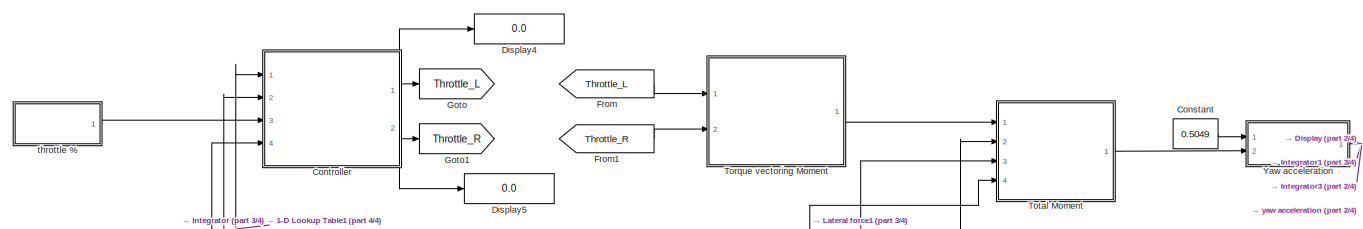
[diagram: root canvas - part 1/4, top center region]
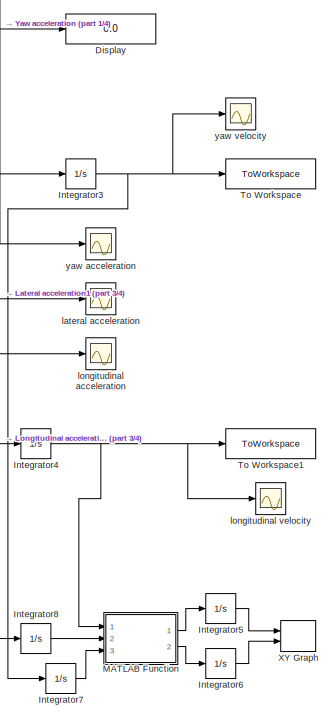
[diagram: root canvas - part 2/4, middle right region]
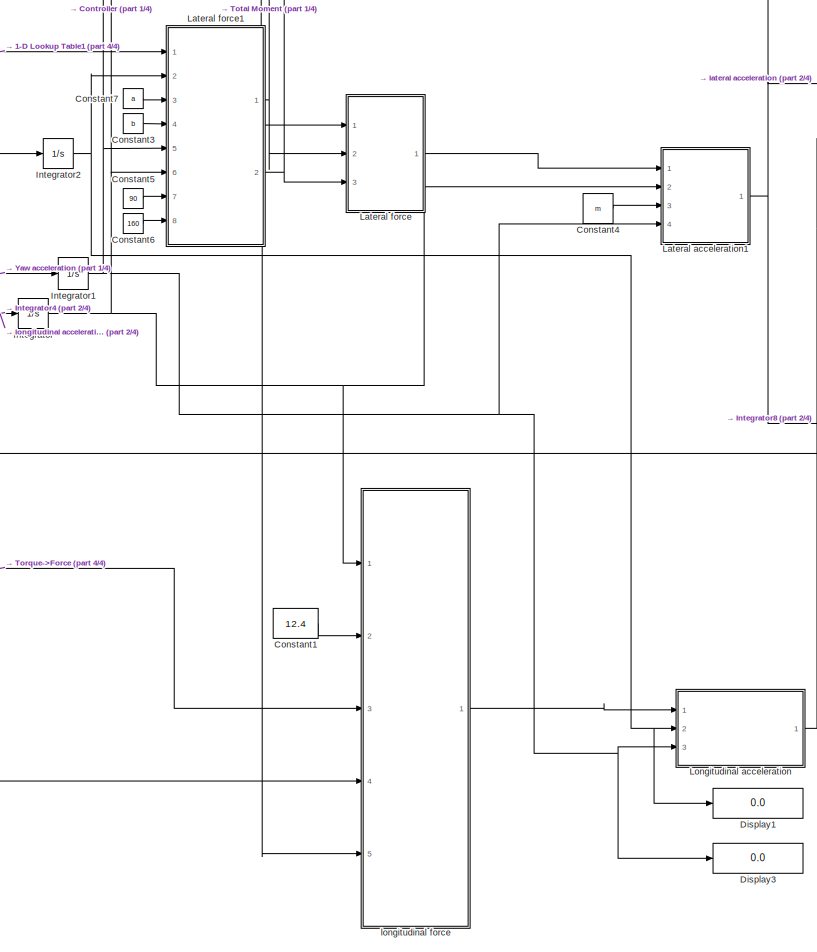
[diagram: root canvas - part 3/4, central region]
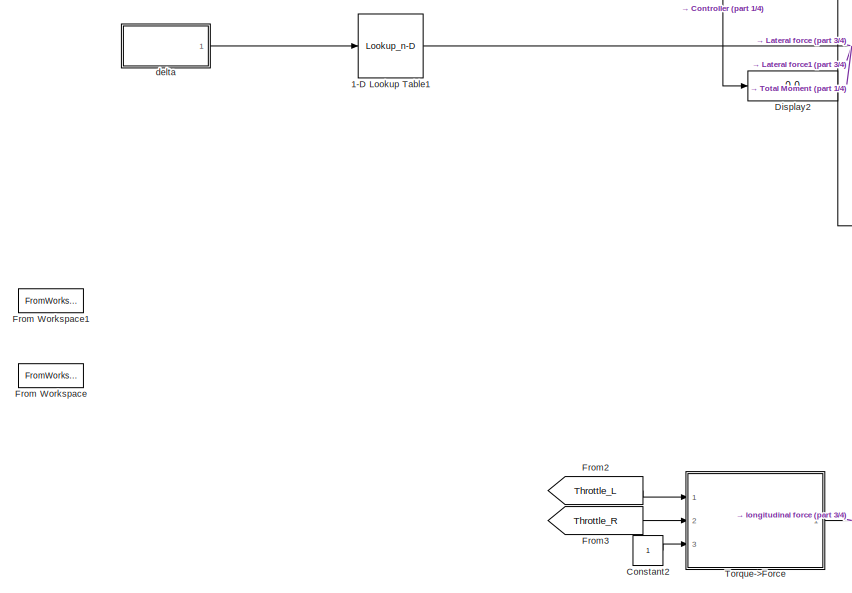
[diagram: root canvas - part 4/4, middle left region]
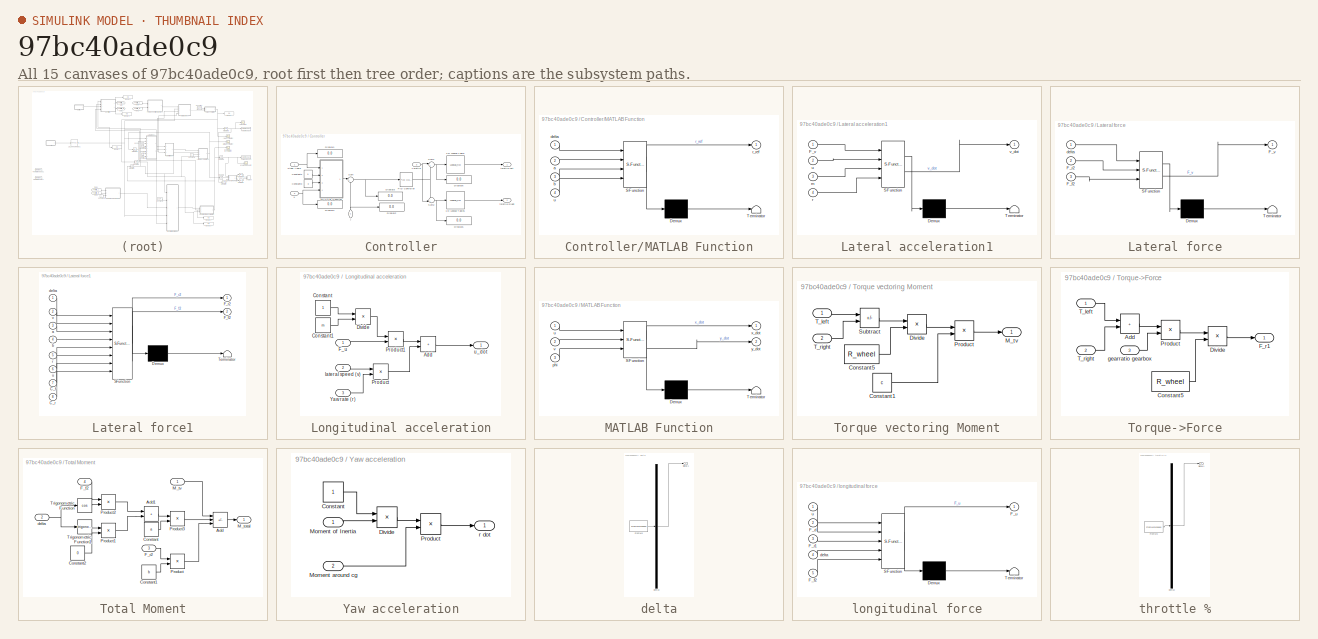
[diagram: thumbnail index - all 15 canvases of the model, root first then tree order]
MODEL slx_97bc40ade0c9
KIND model
CONFIG AbsTol = auto
CONFIG EnableMultiTasking = off
CONFIG FixedStep = 0.05
CONFIG MaxStep = auto
CONFIG MinStep = auto
CONFIG RelTol = 1e-3
CONFIG SampleTimeConstraint = Unconstrained
CONFIG SolverName = FixedStepAuto
CONFIG StartTime = 0.0
CONFIG StopTime = 50
WORKSPACE source: mxarray member
WORKSPACE R_wheel = 0.0565
WORKSPACE W = 0.055
WORKSPACE WD = 0.573125555665
WORKSPACE a = 0.306622172281
WORKSPACE b = 0.228377827719
WORKSPACE c = 0.38
WORKSPACE l = 0.535
WORKSPACE m = 13.4973333333
WORKSPACE m_LF = 2867.66666667
WORKSPACE m_LR = 3883.33333333
WORKSPACE m_RF = 2894
WORKSPACE m_RR = 3852.33333333
WORKSPACE m_f = 5761.66666667
WORKSPACE m_r = 7735.66666667
BLOCK [Lookup_n-D] 1-D Lookup Table1
  BreakpointsForDimension1 = [-50:50]
  InputPortMap = u0
  InternalRulePriority = Speed
  NumberOfTableDimensions = 1
  Ports = [1, 1]
  RndMeth = Simplest
  Table = -(([-50:50])/100)*0.4363*2
BLOCK [Constant] Constant
  Value = 0.5049
BLOCK [Constant] Constant1
  Value = 12.4
BLOCK [Constant] Constant2
BLOCK [Constant] Constant3
  Value = b
BLOCK [Constant] Constant4
  Value = m
BLOCK [Constant] Constant5
  Value = 90
BLOCK [Constant] Constant6
  Value = 160
BLOCK [Constant] Constant7
  Value = a
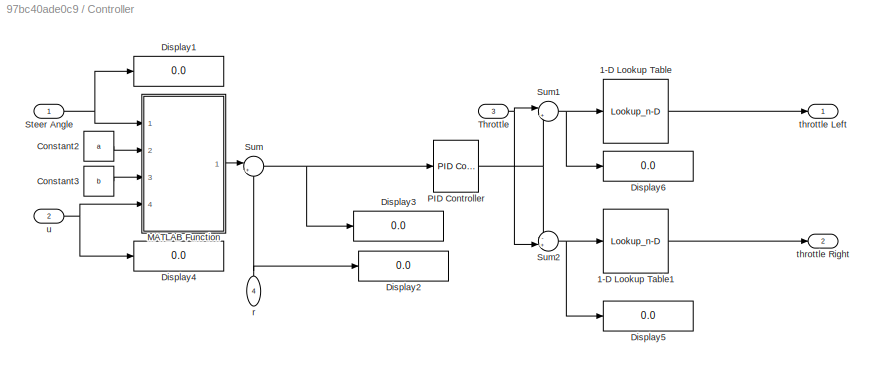
BLOCK [SubSystem] Controller
  Ports = [4, 2]
  RequestExecContextInheritance = off
BLOCK [Lookup_n-D] Controller/1-D Lookup Table
  BreakpointsForDimension1 = [0:100]
  InputPortMap = u0
  InternalRulePriority = Speed
  NumberOfTableDimensions = 1
  Ports = [1, 1]
  RndMeth = Simplest
  Table = (([0:100]-50)/100)*5.28*2
BLOCK [Lookup_n-D] Controller/1-D Lookup Table1
  BreakpointsForDimension1 = [0:100]
  InputPortMap = u0
  InternalRulePriority = Speed
  NumberOfTableDimensions = 1
  Ports = [1, 1]
  RndMeth = Simplest
  Table = (([0:100]-50)/100)*5.28*2
BLOCK [Constant] Controller/Constant2
  Value = a
BLOCK [Constant] Controller/Constant3
  Value = b
BLOCK [Display] Controller/Display1
  Decimation = 1
  Ports = [1]
BLOCK [Display] Controller/Display2
  Decimation = 1
  Ports = [1]
BLOCK [Display] Controller/Display3
  Decimation = 1
  Ports = [1]
BLOCK [Display] Controller/Display4
  Decimation = 1
  Ports = [1]
BLOCK [Display] Controller/Display5
  Decimation = 1
  Ports = [1]
BLOCK [Display] Controller/Display6
  Decimation = 1
  Ports = [1]
BLOCK [SubSystem] Controller/MATLAB Function
  ErrorFcn = Stateflow.Translate.translate
  PermitHierarchicalResolution = ExplicitOnly
  Ports = [4, 1]
  RequestExecContextInheritance = off
  SFBlockType = MATLAB Function
  TreatAsAtomicUnit = on
BLOCK [Demux] Controller/MATLAB Function/ Demux 
  Outputs = 1
  Ports = [1, 1]
BLOCK [S-Function] Controller/MATLAB Function/ SFunction 
  EnableBusSupport = on
  FunctionName = sf_sfun
  PortCounts = [4 2]
  Ports = [4, 2]
  SFcnIsStateOwnerBlock = off
  SFunctionDeploymentMode = off
  Tag = Stateflow S-Function 4
BLOCK [Terminator] Controller/MATLAB Function/ Terminator 
BLOCK [Inport] Controller/MATLAB Function/a
  Port = 2
BLOCK [Inport] Controller/MATLAB Function/b
  Port = 3
BLOCK [Inport] Controller/MATLAB Function/delta
BLOCK [Outport] Controller/MATLAB Function/r_ref
BLOCK [Inport] Controller/MATLAB Function/u
  Port = 4
BLOCK [Reference] Controller/PID Controller  REF=slpidlib/PID Controller
  Ports = [1, 1]
  SourceBlock = slpidlib/PID Controller
  SourceProductBaseCode = SL
  SourceType = PID 1dof
BLOCK [Inport] Controller/Steer Angle
BLOCK [Sum] Controller/Sum
  Inputs = |+-
  Ports = [2, 1]
BLOCK [Sum] Controller/Sum1
  Inputs = |++
  Ports = [2, 1]
BLOCK [Sum] Controller/Sum2
  Inputs = -+|
  Ports = [2, 1]
BLOCK [Inport] Controller/Throttle
  Port = 3
BLOCK [Inport] Controller/r
  NameLocation = right
  Port = 4
BLOCK [Outport] Controller/throttle Left
  NameLocation = right
BLOCK [Outport] Controller/throttle Right
  Port = 2
BLOCK [Inport] Controller/u
  Port = 2
BLOCK [Display] Display
  Decimation = 1
  Ports = [1]
BLOCK [Display] Display1
  Decimation = 1
  Ports = [1]
BLOCK [Display] Display2
  Decimation = 1
  Ports = [1]
BLOCK [Display] Display3
  Decimation = 1
  Ports = [1]
BLOCK [Display] Display4
  Decimation = 1
  Ports = [1]
BLOCK [Display] Display5
  Decimation = 1
  Ports = [1]
BLOCK [From] From
  GotoTag = Throttle_L
BLOCK [FromWorkspace] From Workspace
  Commented = on
  OutDataTypeStr = double
  VariableName = Steer_percent
BLOCK [FromWorkspace] From Workspace1
  Commented = on
  OutDataTypeStr = double
  VariableName = Throttle_percent
BLOCK [From] From1
  GotoTag = Throttle_R
BLOCK [From] From2
  GotoTag = Throttle_L
BLOCK [From] From3
  GotoTag = Throttle_R
BLOCK [Goto] Goto
  GotoTag = Throttle_L
BLOCK [Goto] Goto1
  GotoTag = Throttle_R
BLOCK [Integrator] Integrator
  Ports = [1, 1]
BLOCK [Integrator] Integrator1
  Ports = [1, 1]
BLOCK [Integrator] Integrator2
  Ports = [1, 1]
BLOCK [Integrator] Integrator3
  Ports = [1, 1]
  UpperSaturationLimit = 90000
BLOCK [Integrator] Integrator4
  Ports = [1, 1]
BLOCK [Integrator] Integrator5
  Ports = [1, 1]
BLOCK [Integrator] Integrator6
  Ports = [1, 1]
BLOCK [Integrator] Integrator7
  Ports = [1, 1]
BLOCK [Integrator] Integrator8
  Ports = [1, 1]
BLOCK [SubSystem] Lateral acceleration1
  ErrorFcn = Stateflow.Translate.translate
  PermitHierarchicalResolution = ExplicitOnly
  Ports = [4, 1]
  RequestExecContextInheritance = off
  SFBlockType = MATLAB Function
  TreatAsAtomicUnit = on
BLOCK [Demux] Lateral acceleration1/ Demux 
  Outputs = 1
  Ports = [1, 1]
BLOCK [S-Function] Lateral acceleration1/ SFunction 
  EnableBusSupport = on
  FunctionName = sf_sfun
  PortCounts = [4 2]
  Ports = [4, 2]
  SFcnIsStateOwnerBlock = off
  SFunctionDeploymentMode = off
  Tag = Stateflow S-Function 1
BLOCK [Terminator] Lateral acceleration1/ Terminator 
BLOCK [Inport] Lateral acceleration1/F_v
BLOCK [Inport] Lateral acceleration1/m
  Port = 3
BLOCK [Inport] Lateral acceleration1/r
  Port = 4
BLOCK [Inport] Lateral acceleration1/u
  Port = 2
BLOCK [Outport] Lateral acceleration1/v_dot
BLOCK [SubSystem] Lateral force
  ErrorFcn = Stateflow.Translate.translate
  PermitHierarchicalResolution = ExplicitOnly
  Ports = [3, 1]
  RequestExecContextInheritance = off
  SFBlockType = MATLAB Function
  TreatAsAtomicUnit = on
BLOCK [Demux] Lateral force/ Demux 
  Outputs = 1
  Ports = [1, 1]
BLOCK [S-Function] Lateral force/ SFunction 
  EnableBusSupport = on
  FunctionName = sf_sfun
  PortCounts = [3 2]
  Ports = [3, 2]
  SFcnIsStateOwnerBlock = off
  SFunctionDeploymentMode = off
  Tag = Stateflow S-Function 2
BLOCK [Terminator] Lateral force/ Terminator 
BLOCK [Inport] Lateral force/F_f2
  Port = 3
BLOCK [Inport] Lateral force/F_r2
  Port = 2
BLOCK [Outport] Lateral force/F_v
BLOCK [Inport] Lateral force/delta
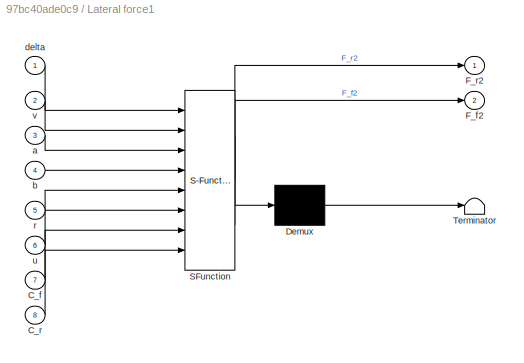
BLOCK [SubSystem] Lateral force1
  ErrorFcn = Stateflow.Translate.translate
  PermitHierarchicalResolution = ExplicitOnly
  Ports = [8, 2]
  RequestExecContextInheritance = off
  SFBlockType = MATLAB Function
  TreatAsAtomicUnit = on
BLOCK [Demux] Lateral force1/ Demux 
  Outputs = 1
  Ports = [1, 1]
BLOCK [S-Function] Lateral force1/ SFunction 
  EnableBusSupport = on
  FunctionName = sf_sfun
  PortCounts = [8 3]
  Ports = [8, 3]
  SFcnIsStateOwnerBlock = off
  SFunctionDeploymentMode = off
  Tag = Stateflow S-Function 5
BLOCK [Terminator] Lateral force1/ Terminator 
BLOCK [Inport] Lateral force1/C_f
  Port = 7
BLOCK [Inport] Lateral force1/C_r
  Port = 8
BLOCK [Outport] Lateral force1/F_f2
  Port = 2
BLOCK [Outport] Lateral force1/F_r2
BLOCK [Inport] Lateral force1/a
  Port = 3
BLOCK [Inport] Lateral force1/b
  Port = 4
BLOCK [Inport] Lateral force1/delta
BLOCK [Inport] Lateral force1/r
  Port = 5
BLOCK [Inport] Lateral force1/u
  Port = 6
BLOCK [Inport] Lateral force1/v
  Port = 2
BLOCK [SubSystem] Longitudinal acceleration
  Ports = [3, 1]
  RequestExecContextInheritance = off
BLOCK [Sum] Longitudinal acceleration/Add
  IconShape = rectangular
  Ports = [2, 1]
BLOCK [Constant] Longitudinal acceleration/Constant
BLOCK [Constant] Longitudinal acceleration/Constant1
  Value = m
BLOCK [Product] Longitudinal acceleration/Divide
  Inputs = */
  Ports = [2, 1]
BLOCK [Inport] Longitudinal acceleration/F_u
BLOCK [Product] Longitudinal acceleration/Product
  Ports = [2, 1]
BLOCK [Product] Longitudinal acceleration/Product1
  Ports = [2, 1]
BLOCK [Inport] Longitudinal acceleration/Yaw rate (r)
  Port = 3
BLOCK [Inport] Longitudinal acceleration/lateral speed (v)
  Port = 2
BLOCK [Outport] Longitudinal acceleration/u_dot
BLOCK [SubSystem] MATLAB Function
  ErrorFcn = Stateflow.Translate.translate
  PermitHierarchicalResolution = ExplicitOnly
  Ports = [3, 2]
  RequestExecContextInheritance = off
  SFBlockType = MATLAB Function
  TreatAsAtomicUnit = on
BLOCK [Demux] MATLAB Function/ Demux 
  Outputs = 1
  Ports = [1, 1]
BLOCK [S-Function] MATLAB Function/ SFunction 
  EnableBusSupport = on
  FunctionName = sf_sfun
  PortCounts = [3 3]
  Ports = [3, 3]
  SFcnIsStateOwnerBlock = off
  SFunctionDeploymentMode = off
  Tag = Stateflow S-Function 6
BLOCK [Terminator] MATLAB Function/ Terminator 
BLOCK [Inport] MATLAB Function/phi
  Port = 3
BLOCK [Inport] MATLAB Function/u
BLOCK [Inport] MATLAB Function/v
  Port = 2
BLOCK [Outport] MATLAB Function/x_dot
BLOCK [Outport] MATLAB Function/y_dot
  Port = 2
BLOCK [ToWorkspace] To Workspace
  FixptAsFi = on
  MaxDataPoints = inf
  Ports = [1]
  SampleTime = -1
  SaveFormat = Timeseries
  VariableName = yaw_velocity
BLOCK [ToWorkspace] To Workspace1
  FixptAsFi = on
  MaxDataPoints = inf
  Ports = [1]
  SampleTime = -1
  SaveFormat = Timeseries
  VariableName = longitudinal_velocity
BLOCK [SubSystem] Torque vectoring Moment
  Ports = [2, 1]
  RequestExecContextInheritance = off
BLOCK [Constant] Torque vectoring Moment/Constant1
  Value = c
BLOCK [Constant] Torque vectoring Moment/Constant5
  Value = R_wheel
BLOCK [Product] Torque vectoring Moment/Divide
  Inputs = */
  Ports = [2, 1]
BLOCK [Outport] Torque vectoring Moment/M_tv
BLOCK [Product] Torque vectoring Moment/Product
  Ports = [2, 1]
BLOCK [Sum] Torque vectoring Moment/Subtract
  IconShape = rectangular
  Inputs = +-
  Ports = [2, 1]
BLOCK [Inport] Torque vectoring Moment/T_left
BLOCK [Inport] Torque vectoring Moment/T_right
  Port = 2
BLOCK [SubSystem] Torque->Force
  Ports = [3, 1]
  RequestExecContextInheritance = off
BLOCK [Sum] Torque->Force/Add
  IconShape = rectangular
  Ports = [2, 1]
BLOCK [Constant] Torque->Force/Constant5
  Value = R_wheel
BLOCK [Product] Torque->Force/Divide
  Inputs = */
  Ports = [2, 1]
BLOCK [Outport] Torque->Force/F_r1
BLOCK [Product] Torque->Force/Product
  Ports = [2, 1]
BLOCK [Inport] Torque->Force/T_left
BLOCK [Inport] Torque->Force/T_right
  Port = 2
BLOCK [Inport] Torque->Force/gearratio gearbox
  Port = 3
BLOCK [SubSystem] Total Moment
  Ports = [4, 1]
  RequestExecContextInheritance = off
BLOCK [Sum] Total Moment/Add
  IconShape = rectangular
  Inputs = ++-
  Ports = [3, 1]
BLOCK [Sum] Total Moment/Add1
  IconShape = rectangular
  Ports = [2, 1]
BLOCK [Constant] Total Moment/Constant
  Value = a
BLOCK [Constant] Total Moment/Constant1
  Value = b
BLOCK [Constant] Total Moment/Constant2
  Value = 0
BLOCK [Inport] Total Moment/F_f2
  Port = 4
BLOCK [Inport] Total Moment/F_r2
  Port = 3
BLOCK [Outport] Total Moment/M_total
BLOCK [Inport] Total Moment/M_tv
BLOCK [Product] Total Moment/Product
  Ports = [2, 1]
BLOCK [Product] Total Moment/Product1
  Ports = [2, 1]
BLOCK [Product] Total Moment/Product2
  Ports = [2, 1]
BLOCK [Product] Total Moment/Product3
  Ports = [2, 1]
BLOCK [Trigonometry] Total Moment/Trigonometric Function
  Operator = cos
  Ports = [1, 1]
BLOCK [Trigonometry] Total Moment/Trigonometric Function1
  Ports = [1, 1]
BLOCK [Inport] Total Moment/delta
  Port = 2
BLOCK [Record] XY Graph
  CompatibilityTag = XY
  FileSettingsInternal = {"entries":[{"content":{"excelSettings":{"content":{},"type":"Streamout.ExcelSettings"}},"type":"Streamout.FileSettingStorage","uuid":"646fc22e-f072-489d-bdf6-575e97744bfb"}],"packageUris":["http://schema.mathworks.com/mf0/streamout_blocks/R2020a"],"version":"1.0"}
  Layout = [1 1]
  Ports = [2]
  SignalsInternal = {"entries":[{"content":{"signals":[{"content":{"blockPath":["simulinkModel/XY Graph"],"channel":[],"dimensions":[1],"domain":"simulinkModel/XY Graph","lineColor":"#a2142f","plots":[1],"port":1,"sid":[],"signalID":59,"signalName":"Integrator5"},"type":"RecordBlkView.Signal","uuid":"26f0f7e4-69c7-4c74-a1d3-606616469fde"},{"content":{"blockPath":["simulinkModel/XY Graph"],"channel":[],"dimensions":[1...<+383ch>
  VisualizationBindings = {"xyplotplugin":{"info":[{"series":[{"bindingParametersList":[{"parameter":"X-Axis","signalID":59,"signalName":"Integrator5"},{"parameter":"Y-Axis","signalID":62,"signalName":"Integrator6"}],"seriesID":24662}],"subplotID":1}]}}
BLOCK [SubSystem] Yaw acceleration
  Ports = [2, 1]
  RequestExecContextInheritance = off
BLOCK [Constant] Yaw acceleration/Constant
BLOCK [Product] Yaw acceleration/Divide
  Inputs = */
  Ports = [2, 1]
BLOCK [Inport] Yaw acceleration/Moment around cg
  Port = 2
BLOCK [Inport] Yaw acceleration/Moment of Inertia
BLOCK [Product] Yaw acceleration/Product
  Ports = [2, 1]
BLOCK [Outport] Yaw acceleration/r dot
BLOCK [SubSystem] delta
  ClipboardFcn = sigbuilder_block('clipboard');
  CloseFcn = sigbuilder_block('close');
  ContinueFcn = sigbuilder_block('continue');
  CopyFcn = sigbuilder_block('copy');
  DeleteFcn = sigbuilder_block('delete');
  LoadFcn = sigbuilder_block('load');
  MaskHideContents = on
  ModelCloseFcn = sigbuilder_block('modelClose');
  NameChangeFcn = sigbuilder_block('namechange');
  OpenFcn = sigbuilder_block('open',[511.2 133.2 550.8 400.2 ]);
  PauseFcn = sigbuilder_block('pause');
  Ports = [0, 1]
  PreSaveFcn = sigbuilder_block('preSave');
  RequestExecContextInheritance = off
  StartFcn = sigbuilder_block('start');
  StopFcn = sigbuilder_block('stop');
  Tag = STV Subsys
BLOCK [Demux] delta/Demux
  DisplayOption = none
  Outputs = 1
  Ports = [1, 1]
  Tag = STV Demux
BLOCK [FromWorkspace] delta/FromWs
  Tag = STV FromWs
  VariableName = tuvar
BLOCK [Outport] delta/Signal 1
  Tag = STV Outport
BLOCK [Scope] lateral acceleration
  Floating = off
  NumInputPorts = 1
  Ports = [1]
  ScopeSpecificationString = Simulink.scopes.TimeScopeBlockCfg('CurrentConfiguration', extmgr.ConfigurationSet(extmgr.Configuration('Core','General UI',true),extmgr.Configuration('Core','Source UI',true),extmgr.Configuration('Sources','WiredSimulink',true,'DataLoggingVariableName','ScopeData1'),extmgr.Configuration('Visuals','Time Domain',true),extmgr.Configuration('Tools','Plot Navigation',true),extmgr.Configuration('Tools',...<+40ch>
BLOCK [Scope] longitudinal acceleration
  Floating = off
  NumInputPorts = 1
  Ports = [1]
  ScopeSpecificationString = Simulink.scopes.TimeScopeBlockCfg('CurrentConfiguration', extmgr.ConfigurationSet(extmgr.Configuration('Core','General UI',true),extmgr.Configuration('Core','Source UI',true),extmgr.Configuration('Sources','WiredSimulink',true,'DataLoggingVariableName','ScopeData2'),extmgr.Configuration('Visuals','Time Domain',true,'SerializedDisplays',{struct('MinYLimReal','-1.64562','MaxYLimReal','2.23021','YLab...<+1415ch>
BLOCK [SubSystem] longitudinal force
  ErrorFcn = Stateflow.Translate.translate
  PermitHierarchicalResolution = ExplicitOnly
  Ports = [5, 1]
  RequestExecContextInheritance = off
  SFBlockType = MATLAB Function
  TreatAsAtomicUnit = on
BLOCK [Demux] longitudinal force/ Demux 
  Outputs = 1
  Ports = [1, 1]
BLOCK [S-Function] longitudinal force/ SFunction 
  EnableBusSupport = on
  FunctionName = sf_sfun
  PortCounts = [5 2]
  Ports = [5, 2]
  SFcnIsStateOwnerBlock = off
  SFunctionDeploymentMode = off
  Tag = Stateflow S-Function 3
BLOCK [Terminator] longitudinal force/ Terminator 
BLOCK [Inport] longitudinal force/F_d
  Port = 2
BLOCK [Inport] longitudinal force/F_f2
  Port = 5
BLOCK [Inport] longitudinal force/F_r1
  Port = 3
BLOCK [Outport] longitudinal force/F_u
BLOCK [Inport] longitudinal force/delta
  Port = 4
BLOCK [Inport] longitudinal force/u
BLOCK [Scope] longitudinal velocity
  Floating = off
  NumInputPorts = 1
  Ports = [1]
  ScopeSpecificationString = Simulink.scopes.TimeScopeBlockCfg('CurrentConfiguration', extmgr.ConfigurationSet(extmgr.Configuration('Core','General UI',true),extmgr.Configuration('Core','Source UI',true),extmgr.Configuration('Sources','WiredSimulink',true,'DataLoggingVariableName','ScopeData2'),extmgr.Configuration('Visuals','Time Domain',true,'SerializedDisplays',{struct('MinYLimReal','-0.69996','MaxYLimReal','6.29964','YLab...<+1403ch>
BLOCK [SubSystem] throttle %
  ClipboardFcn = sigbuilder_block('clipboard');
  CloseFcn = sigbuilder_block('close');
  ContinueFcn = sigbuilder_block('continue');
  CopyFcn = sigbuilder_block('copy');
  DeleteFcn = sigbuilder_block('delete');
  LoadFcn = sigbuilder_block('load');
  MaskHideContents = on
  ModelCloseFcn = sigbuilder_block('modelClose');
  NameChangeFcn = sigbuilder_block('namechange');
  OpenFcn = sigbuilder_block('open',[180 96 550.8 400.2 ]);
  PauseFcn = sigbuilder_block('pause');
  Ports = [0, 1]
  PreSaveFcn = sigbuilder_block('preSave');
  RequestExecContextInheritance = off
  StartFcn = sigbuilder_block('start');
  StopFcn = sigbuilder_block('stop');
  Tag = STV Subsys
BLOCK [Demux] throttle %/Demux
  DisplayOption = none
  Outputs = 1
  Ports = [1, 1]
  Tag = STV Demux
BLOCK [FromWorkspace] throttle %/FromWs
  Tag = STV FromWs
  VariableName = tuvar
BLOCK [Outport] throttle %/Signal 1
  Tag = STV Outport
BLOCK [Scope] yaw acceleration
  Floating = off
  NumInputPorts = 1
  Ports = [1]
  ScopeSpecificationString = Simulink.scopes.TimeScopeBlockCfg('CurrentConfiguration', extmgr.ConfigurationSet(extmgr.Configuration('Core','General UI',true),extmgr.Configuration('Core','Source UI',true),extmgr.Configuration('Sources','WiredSimulink',true),extmgr.Configuration('Visuals','Time Domain',true,'SerializedDisplays',{struct('MinYLimReal','-1.00000','MaxYLimReal','1.00000','YLabelReal','','MinYLimMag','0.00000','MaxY...<+1368ch>
BLOCK [Scope] yaw velocity
  Floating = off
  NumInputPorts = 1
  Ports = [1]
  ScopeSpecificationString = Simulink.scopes.TimeScopeBlockCfg('CurrentConfiguration', extmgr.ConfigurationSet(extmgr.Configuration('Core','General UI',true),extmgr.Configuration('Core','Source UI',true),extmgr.Configuration('Sources','WiredSimulink',true,'DataLoggingVariableName','ScopeData1'),extmgr.Configuration('Visuals','Time Domain',true,'SerializedDisplays',{struct('MinYLimReal','-7.5835','MaxYLimReal','33.22187','YLab...<+1450ch>
NET 1-D Lookup Table1:1 -> Controller:1, Display2:1, Lateral force1:1, Lateral force:1, Total Moment:2, longitudinal force:4
LINE Constant1:1 -> longitudinal force:2
LINE Constant2:1 -> Torque->Force:3
LINE Constant3:1 -> Lateral force1:4
LINE Constant4:1 -> Lateral acceleration1:3
LINE Constant5:1 -> Lateral force1:7
LINE Constant6:1 -> Lateral force1:8
LINE Constant7:1 -> Lateral force1:3
LINE Constant:1 -> Yaw acceleration:1
LINE Controller/1-D Lookup Table1:1 -> Controller/throttle Right:1
LINE Controller/1-D Lookup Table:1 -> Controller/throttle Left:1
LINE Controller/Constant2:1 -> Controller/MATLAB Function:2
LINE Controller/Constant3:1 -> Controller/MATLAB Function:3
LINE Controller/MATLAB Function:1 -> Controller/Sum:1
NET Controller/PID Controller:1 -> Controller/Sum1:2, Controller/Sum2:1
NET Controller/Steer Angle:1 -> Controller/Display1:1, Controller/MATLAB Function:1
NET Controller/Sum1:1 -> Controller/1-D Lookup Table:1, Controller/Display6:1
NET Controller/Sum2:1 -> Controller/1-D Lookup Table1:1, Controller/Display5:1
NET Controller/Sum:1 -> Controller/Display3:1, Controller/PID Controller:1
NET Controller/Throttle:1 -> Controller/Sum1:1, Controller/Sum2:2
NET Controller/r:1 -> Controller/Display2:1, Controller/Sum:2
NET Controller/u:1 -> Controller/Display4:1, Controller/MATLAB Function:4
NET Controller:1 -> Display4:1, Goto:1
NET Controller:2 -> Display5:1, Goto1:1
LINE From1:1 -> Torque vectoring Moment:2
LINE From2:1 -> Torque->Force:1
LINE From3:1 -> Torque->Force:2
LINE From:1 -> Torque vectoring Moment:1
NET Integrator1:1 -> Controller:4, Display3:1, Lateral acceleration1:4, Lateral force1:5, Longitudinal acceleration:3
NET Integrator2:1 -> Display1:1, Lateral force1:2, Longitudinal acceleration:2
NET Integrator3:1 -> Integrator7:1, To Workspace:1, yaw velocity:1
NET Integrator4:1 -> MATLAB Function:1, To Workspace1:1, longitudinal velocity:1
LINE Integrator5:1 -> XY Graph:1
LINE Integrator6:1 -> XY Graph:2
LINE Integrator7:1 -> MATLAB Function:3
LINE Integrator8:1 -> MATLAB Function:2
NET Integrator:1 -> Controller:2, Lateral acceleration1:2, Lateral force1:6, longitudinal force:1
NET Lateral acceleration1:1 -> Integrator2:1, Integrator8:1, lateral acceleration:1
NET Lateral force1:1 -> Lateral force:2, Total Moment:3
NET Lateral force1:2 -> Lateral force:3, Total Moment:4, longitudinal force:5
LINE Lateral force:1 -> Lateral acceleration1:1
LINE Longitudinal acceleration/Add:1 -> Longitudinal acceleration/u_dot:1
LINE Longitudinal acceleration/Constant1:1 -> Longitudinal acceleration/Divide:2
LINE Longitudinal acceleration/Constant:1 -> Longitudinal acceleration/Divide:1
LINE Longitudinal acceleration/Divide:1 -> Longitudinal acceleration/Product1:1
LINE Longitudinal acceleration/F_u:1 -> Longitudinal acceleration/Product1:2
LINE Longitudinal acceleration/Product1:1 -> Longitudinal acceleration/Add:1
LINE Longitudinal acceleration/Product:1 -> Longitudinal acceleration/Add:2
LINE Longitudinal acceleration/Yaw rate (r):1 -> Longitudinal acceleration/Product:2
LINE Longitudinal acceleration/lateral speed (v):1 -> Longitudinal acceleration/Product:1
NET Longitudinal acceleration:1 -> Integrator4:1, Integrator:1, longitudinal acceleration:1
LINE MATLAB Function:1 -> Integrator5:1
LINE MATLAB Function:2 -> Integrator6:1
LINE Torque vectoring Moment/Constant1:1 -> Torque vectoring Moment/Product:2
LINE Torque vectoring Moment/Constant5:1 -> Torque vectoring Moment/Divide:2
LINE Torque vectoring Moment/Divide:1 -> Torque vectoring Moment/Product:1
LINE Torque vectoring Moment/Product:1 -> Torque vectoring Moment/M_tv:1
LINE Torque vectoring Moment/Subtract:1 -> Torque vectoring Moment/Divide:1
LINE Torque vectoring Moment/T_left:1 -> Torque vectoring Moment/Subtract:1
LINE Torque vectoring Moment/T_right:1 -> Torque vectoring Moment/Subtract:2
LINE Torque vectoring Moment:1 -> Total Moment:1
LINE Torque->Force/Add:1 -> Torque->Force/Product:1
LINE Torque->Force/Constant5:1 -> Torque->Force/Divide:2
LINE Torque->Force/Divide:1 -> Torque->Force/F_r1:1
LINE Torque->Force/Product:1 -> Torque->Force/Divide:1
LINE Torque->Force/T_left:1 -> Torque->Force/Add:1
LINE Torque->Force/T_right:1 -> Torque->Force/Add:2
LINE Torque->Force/gearratio gearbox:1 -> Torque->Force/Product:2
LINE Torque->Force:1 -> longitudinal force:3
LINE Total Moment/Add1:1 -> Total Moment/Product3:1
LINE Total Moment/Add:1 -> Total Moment/M_total:1
LINE Total Moment/Constant1:1 -> Total Moment/Product:2
LINE Total Moment/Constant2:1 -> Total Moment/Product1:2
LINE Total Moment/Constant:1 -> Total Moment/Product3:2
LINE Total Moment/F_f2:1 -> Total Moment/Product2:1
LINE Total Moment/F_r2:1 -> Total Moment/Product:1
LINE Total Moment/M_tv:1 -> Total Moment/Add:1
LINE Total Moment/Product1:1 -> Total Moment/Add1:2
LINE Total Moment/Product2:1 -> Total Moment/Add1:1
LINE Total Moment/Product3:1 -> Total Moment/Add:2
LINE Total Moment/Product:1 -> Total Moment/Add:3
LINE Total Moment/Trigonometric Function1:1 -> Total Moment/Product1:1
LINE Total Moment/Trigonometric Function:1 -> Total Moment/Product2:2
NET Total Moment/delta:1 -> Total Moment/Trigonometric Function1:1, Total Moment/Trigonometric Function:1
LINE Total Moment:1 -> Yaw acceleration:2
LINE Yaw acceleration/Constant:1 -> Yaw acceleration/Divide:1
LINE Yaw acceleration/Divide:1 -> Yaw acceleration/Product:1
LINE Yaw acceleration/Moment around cg:1 -> Yaw acceleration/Product:2
LINE Yaw acceleration/Moment of Inertia:1 -> Yaw acceleration/Divide:2
LINE Yaw acceleration/Product:1 -> Yaw acceleration/r dot:1
NET Yaw acceleration:1 -> Display:1, Integrator1:1, Integrator3:1, yaw acceleration:1
LINE delta:1 -> 1-D Lookup Table1:1
LINE longitudinal force:1 -> Longitudinal acceleration:1
LINE throttle %:1 -> Controller:3
note: NET lines group one-source signal fan-out (src -> all destinations, sorted); 1:1 wires keep LINE
CHART Lateral acceleration1 states=1 transitions=1
  STATE_LABEL 'eML_blk_kernel()'
  STATE_LABEL 'SCRIPT:\nfunction v_dot = fcn(F_v, u, m, r)\nv_dot = double((1/m)*F_v - u *r);\n\n'
CHART Lateral force states=1 transitions=1
  STATE_LABEL 'eML_blk_kernel()'
  STATE_LABEL 'SCRIPT:\nfunction F_v = Lateral_Force(delta, F_r2, F_f2)\nF_v = F_r2 + cos(delta)*F_f2;\n\n'
CHART longitudinal force states=1 transitions=1
  STATE_LABEL 'eML_blk_kernel()'
  STATE_LABEL 'SCRIPT:\nfunction F_u = longitudinal_force(u,F_d,F_r1, delta, F_f2)\nif u>0\n    F_dreal = F_d;\nelseif u<0\n    F_dreal = -F_d;\nelse\n    F_dreal = 0;\nend\nF_u = F_r1 - sin(delta)*F_f2 - F_dreal;\n'
CHART Controller/MATLAB Function states=1 transitions=1
  STATE_LABEL 'eML_blk_kernel()'
  STATE_LABEL 'SCRIPT:\nfunction r_ref = r(delta,a,b,u)\nr_ref = ((tan(delta))/(a+b)) * u;\n'
CHART Lateral force1 states=1 transitions=1
  STATE_LABEL 'eML_blk_kernel()'
  STATE_LABEL 'SCRIPT:\nfunction [F_r2,F_f2] = Lateral_Force_Front(delta,v,a,b,r,u, C_f,C_r)\nif abs(u)>0\n    alpha_r = atan((-v+b*r)/u);\n    alpha_f = delta + atan((-v-a*r)/u);\nelse\n    alpha_r = 0;\n    alpha_f = 0;\nend\n\nF_f2 = C_f*alpha_f;\nF_r2 = C_r*alpha_r;\n\n'
CHART MATLAB Function states=1 transitions=1
  STATE_LABEL 'eML_blk_kernel()'
  STATE_LABEL 'SCRIPT:\nfunction [x_dot, y_dot] = fcn(u, v, phi)\n\nx_dot = u*cos(phi) - v*sin(phi);\ny_dot = u*sin(phi) + v*cos(phi);\n'
CHART  states=0 transitions=0
CHART  states=0 transitions=0
CHART  states=0 transitions=0
CHART  states=0 transitions=0
CHART  states=0 transitions=0
CHART  states=0 transitions=0
